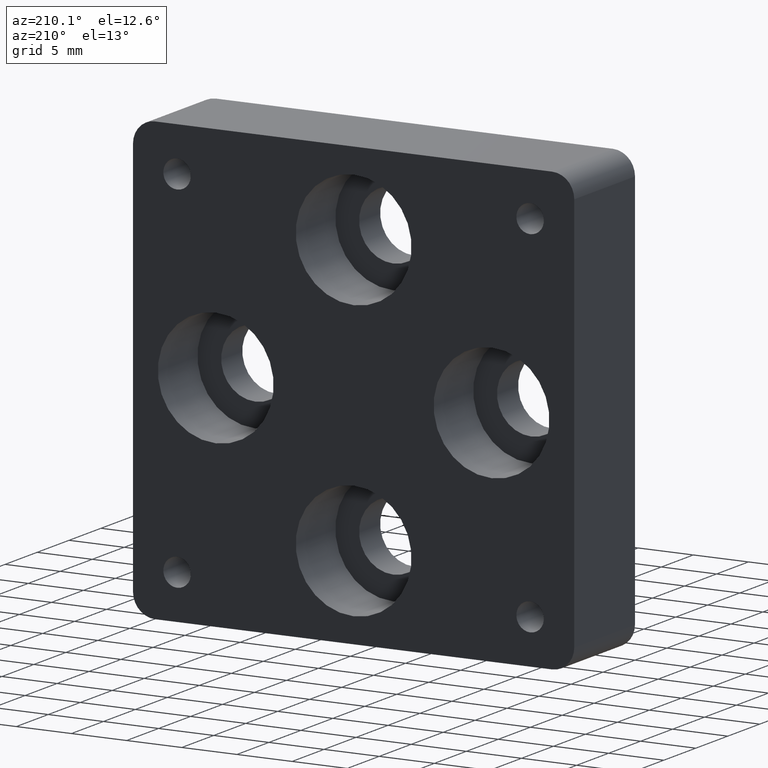
[diagram: clean part render]
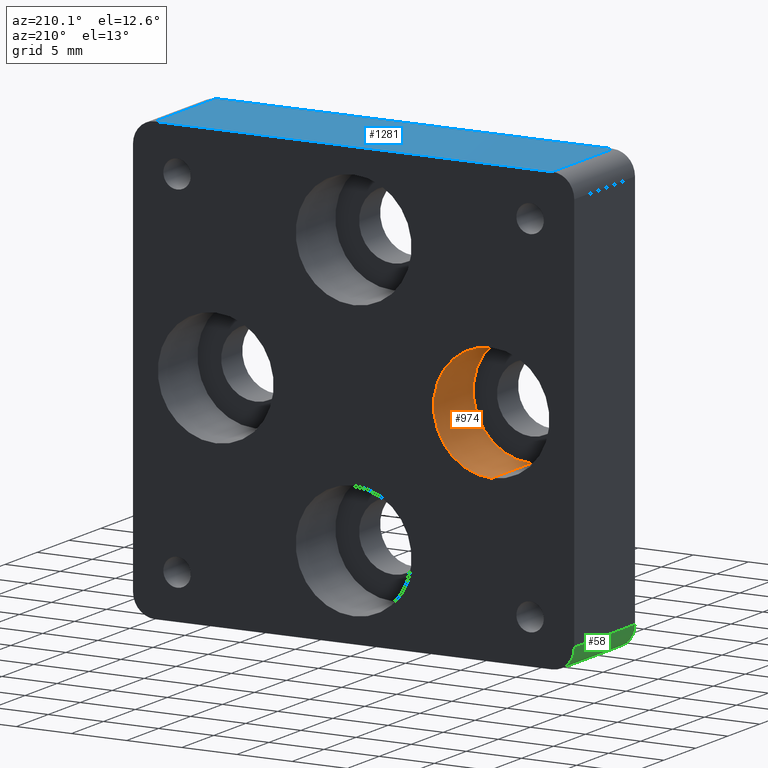
[diagram: same view with three faces highlighted in distinct colors, each labeled with its STEP entity id]
A machine part, auxiliary view with three faces highlighted in distinct colors.
Their STEP definitions:

[orange] entity #974 — the highlighted cylindrical surface (partial cylindrical patch) has radius 5.25 mm, axis along (0, 1, 0).
#3 = CARTESIAN_POINT ( 'NONE',  ( -12.50000000000000000, 9.500000000000000000, -5.250000000000000000 ) ) ;
#118 = AXIS2_PLACEMENT_3D ( 'NONE', #1045, #870, #154 ) ;
#154 = DIRECTION ( 'NONE',  ( 0.000000000000000000, 0.000000000000000000, 1.000000000000000000 ) ) ;
#204 = ORIENTED_EDGE ( 'NONE', *, *, #957, .T. ) ;
#259 = ORIENTED_EDGE ( 'NONE', *, *, #1106, .T. ) ;
#301 = EDGE_CURVE ( 'NONE', #924, #1097, #835, .T. ) ;
#305 = DIRECTION ( 'NONE',  ( 0.000000000000000000, 1.000000000000000000, 0.000000000000000000 ) ) ;
#323 = AXIS2_PLACEMENT_3D ( 'NONE', #411, #1119, #1221 ) ;
#372 = VERTEX_POINT ( 'NONE', #952 ) ;
#411 = CARTESIAN_POINT ( 'NONE',  ( -12.50000000000000000, 9.500000000000000000, 0.000000000000000000 ) ) ;
#458 = LINE ( 'NONE', #1042, #1187 ) ;
#552 = DIRECTION ( 'NONE',  ( 0.000000000000000000, 1.000000000000000000, 0.000000000000000000 ) ) ;
#559 = DIRECTION ( 'NONE',  ( 0.000000000000000000, 1.000000000000000000, 0.000000000000000000 ) ) ;
#598 = CARTESIAN_POINT ( 'NONE',  ( -12.50000000000000000, 3.299999999999999822, -5.250000000000000000 ) ) ;
#623 = EDGE_CURVE ( 'NONE', #1097, #694, #1086, .T. ) ;
#668 = DIRECTION ( 'NONE',  ( 0.000000000000000000, 0.000000000000000000, 1.000000000000000000 ) ) ;
#694 = VERTEX_POINT ( 'NONE', #3 ) ;
#739 = CARTESIAN_POINT ( 'NONE',  ( -12.50000000000000000, 3.299999999999999822, 5.250000000000000000 ) ) ;
#761 = CIRCLE ( 'NONE', #323, 5.250000000000000000 ) ;
#835 = CIRCLE ( 'NONE', #118, 5.250000000000000000 ) ;
#836 = ORIENTED_EDGE ( 'NONE', *, *, #623, .F. ) ;
#870 = DIRECTION ( 'NONE',  ( 0.000000000000000000, 1.000000000000000000, 0.000000000000000000 ) ) ;
#904 = AXIS2_PLACEMENT_3D ( 'NONE', #945, #552, #668 ) ;
#924 = VERTEX_POINT ( 'NONE', #739 ) ;
#945 = CARTESIAN_POINT ( 'NONE',  ( -12.50000000000000000, 3.299999999999999822, 0.000000000000000000 ) ) ;
#952 = CARTESIAN_POINT ( 'NONE',  ( -12.50000000000000000, 9.500000000000000000, 5.250000000000000000 ) ) ;
#957 = EDGE_CURVE ( 'NONE', #924, #372, #458, .T. ) ;
#974 = ADVANCED_FACE ( 'NONE', ( #1247 ), #1255, .F. ) ;
#991 = EDGE_LOOP ( 'NONE', ( #836, #1201, #204, #259 ) ) ;
#1018 = VECTOR ( 'NONE', #305, 1000.000000000000000 ) ;
#1022 = CARTESIAN_POINT ( 'NONE',  ( -12.50000000000000000, 3.299999999999999822, -5.250000000000000000 ) ) ;
#1042 = CARTESIAN_POINT ( 'NONE',  ( -12.50000000000000000, 3.299999999999999822, 5.250000000000000000 ) ) ;
#1045 = CARTESIAN_POINT ( 'NONE',  ( -12.50000000000000000, 3.299999999999999822, 0.000000000000000000 ) ) ;
#1086 = LINE ( 'NONE', #598, #1018 ) ;
#1097 = VERTEX_POINT ( 'NONE', #1022 ) ;
#1106 = EDGE_CURVE ( 'NONE', #372, #694, #761, .T. ) ;
#1119 = DIRECTION ( 'NONE',  ( 0.000000000000000000, 1.000000000000000000, 0.000000000000000000 ) ) ;
#1187 = VECTOR ( 'NONE', #559, 1000.000000000000000 ) ;
#1201 = ORIENTED_EDGE ( 'NONE', *, *, #301, .F. ) ;
#1221 = DIRECTION ( 'NONE',  ( 0.000000000000000000, 0.000000000000000000, 1.000000000000000000 ) ) ;
#1247 = FACE_OUTER_BOUND ( 'NONE', #991, .T. ) ;
#1255 = CYLINDRICAL_SURFACE ( 'NONE', #904, 5.250000000000000000 ) ;

[blue] entity #1281 — the highlighted planar face has unit normal (-0, 0, -1).
#1 = ORIENTED_EDGE ( 'NONE', *, *, #562, .T. ) ;
#82 = LINE ( 'NONE', #681, #488 ) ;
#85 = VERTEX_POINT ( 'NONE', #344 ) ;
#185 = VERTEX_POINT ( 'NONE', #533 ) ;
#190 = CARTESIAN_POINT ( 'NONE',  ( -20.00000000000000000, 9.500000000000000000, 20.00000000000000000 ) ) ;
#219 = VERTEX_POINT ( 'NONE', #268 ) ;
#232 = DIRECTION ( 'NONE',  ( 1.000000000000000000, 0.000000000000000000, -8.673617379884039170E-17 ) ) ;
#233 = CARTESIAN_POINT ( 'NONE',  ( -20.00000000000000000, 9.500000000000000000, 20.00000000000000000 ) ) ;
#238 = LINE ( 'NONE', #247, #563 ) ;
#247 = CARTESIAN_POINT ( 'NONE',  ( 18.00000000000000000, 9.500000000000000000, 20.00000000000000000 ) ) ;
#268 = CARTESIAN_POINT ( 'NONE',  ( -18.00000000000000000, 0.000000000000000000, 20.00000000000000000 ) ) ;
#277 = CARTESIAN_POINT ( 'NONE',  ( -18.00000000000000000, 9.500000000000000000, 20.00000000000000000 ) ) ;
#280 = LINE ( 'NONE', #190, #512 ) ;
#310 = VERTEX_POINT ( 'NONE', #277 ) ;
#344 = CARTESIAN_POINT ( 'NONE',  ( 18.00000000000000000, 0.000000000000000000, 20.00000000000000000 ) ) ;
#431 = ORIENTED_EDGE ( 'NONE', *, *, #561, .F. ) ;
#435 = DIRECTION ( 'NONE',  ( -1.000000000000000000, 0.000000000000000000, 8.673617379884039170E-17 ) ) ;
#488 = VECTOR ( 'NONE', #772, 1000.000000000000000 ) ;
#512 = VECTOR ( 'NONE', #588, 1000.000000000000000 ) ;
#519 = LINE ( 'NONE', #1125, #1070 ) ;
#533 = CARTESIAN_POINT ( 'NONE',  ( 18.00000000000000000, 9.500000000000000000, 20.00000000000000000 ) ) ;
#534 = DIRECTION ( 'NONE',  ( 0.000000000000000000, 1.000000000000000000, 0.000000000000000000 ) ) ;
#548 = DIRECTION ( 'NONE',  ( -8.673617379884039170E-17, 0.000000000000000000, -1.000000000000000000 ) ) ;
#561 = EDGE_CURVE ( 'NONE', #310, #185, #280, .T. ) ;
#562 = EDGE_CURVE ( 'NONE', #310, #219, #82, .T. ) ;
#563 = VECTOR ( 'NONE', #534, 1000.000000000000000 ) ;
#588 = DIRECTION ( 'NONE',  ( 1.000000000000000000, 0.000000000000000000, -8.673617379884039170E-17 ) ) ;
#591 = EDGE_LOOP ( 'NONE', ( #613, #858, #431, #1 ) ) ;
#613 = ORIENTED_EDGE ( 'NONE', *, *, #832, .T. ) ;
#681 = CARTESIAN_POINT ( 'NONE',  ( -18.00000000000000000, 9.500000000000000000, 20.00000000000000000 ) ) ;
#772 = DIRECTION ( 'NONE',  ( 0.000000000000000000, -1.000000000000000000, 0.000000000000000000 ) ) ;
#828 = PLANE ( 'NONE',  #1175 ) ;
#832 = EDGE_CURVE ( 'NONE', #219, #85, #519, .T. ) ;
#858 = ORIENTED_EDGE ( 'NONE', *, *, #934, .T. ) ;
#934 = EDGE_CURVE ( 'NONE', #85, #185, #238, .T. ) ;
#1070 = VECTOR ( 'NONE', #232, 1000.000000000000000 ) ;
#1125 = CARTESIAN_POINT ( 'NONE',  ( -20.00000000000000000, 0.000000000000000000, 20.00000000000000000 ) ) ;
#1175 = AXIS2_PLACEMENT_3D ( 'NONE', #233, #548, #435 ) ;
#1252 = FACE_OUTER_BOUND ( 'NONE', #591, .T. ) ;
#1281 = ADVANCED_FACE ( 'NONE', ( #1252 ), #828, .F. ) ;

[green] entity #58 — the highlighted cylindrical surface (edge-blend (fillet) strip) has radius 2 mm, axis along (0, -1, 0).
#11 = EDGE_CURVE ( 'NONE', #509, #158, #674, .T. ) ;
#58 = ADVANCED_FACE ( 'NONE', ( #1137 ), #420, .T. ) ;
#93 = VECTOR ( 'NONE', #373, 1000.000000000000000 ) ;
#96 = CIRCLE ( 'NONE', #527, 1.999999999999998224 ) ;
#158 = VERTEX_POINT ( 'NONE', #1025 ) ;
#206 = EDGE_LOOP ( 'NONE', ( #877, #385, #1080, #817 ) ) ;
#288 = CARTESIAN_POINT ( 'NONE',  ( -20.00000000000000000, 9.500000000000000000, -18.00000000000000000 ) ) ;
#296 = VERTEX_POINT ( 'NONE', #664 ) ;
#325 = DIRECTION ( 'NONE',  ( 0.000000000000000000, 0.000000000000000000, -1.000000000000000000 ) ) ;
#371 = DIRECTION ( 'NONE',  ( 0.000000000000000000, -1.000000000000000000, 0.000000000000000000 ) ) ;
#373 = DIRECTION ( 'NONE',  ( 0.000000000000000000, 1.000000000000000000, 0.000000000000000000 ) ) ;
#385 = ORIENTED_EDGE ( 'NONE', *, *, #11, .F. ) ;
#388 = LINE ( 'NONE', #288, #682 ) ;
#399 = CIRCLE ( 'NONE', #573, 1.999999999999998224 ) ;
#420 = CYLINDRICAL_SURFACE ( 'NONE', #629, 1.999999999999998224 ) ;
#509 = VERTEX_POINT ( 'NONE', #1274 ) ;
#524 = CARTESIAN_POINT ( 'NONE',  ( -18.00000000000000000, 9.500000000000000000, -18.00000000000000000 ) ) ;
#527 = AXIS2_PLACEMENT_3D ( 'NONE', #1240, #852, #1273 ) ;
#550 = EDGE_CURVE ( 'NONE', #1205, #296, #388, .T. ) ;
#573 = AXIS2_PLACEMENT_3D ( 'NONE', #1054, #841, #1041 ) ;
#576 = CARTESIAN_POINT ( 'NONE',  ( -18.00000000000000000, 9.500000000000000000, -20.00000000000000000 ) ) ;
#629 = AXIS2_PLACEMENT_3D ( 'NONE', #524, #930, #325 ) ;
#664 = CARTESIAN_POINT ( 'NONE',  ( -20.00000000000000000, 0.000000000000000000, -18.00000000000000000 ) ) ;
#674 = LINE ( 'NONE', #576, #93 ) ;
#682 = VECTOR ( 'NONE', #371, 1000.000000000000000 ) ;
#817 = ORIENTED_EDGE ( 'NONE', *, *, #550, .F. ) ;
#841 = DIRECTION ( 'NONE',  ( 0.000000000000000000, -1.000000000000000000, 0.000000000000000000 ) ) ;
#852 = DIRECTION ( 'NONE',  ( 0.000000000000000000, 1.000000000000000000, 0.000000000000000000 ) ) ;
#877 = ORIENTED_EDGE ( 'NONE', *, *, #996, .F. ) ;
#916 = CARTESIAN_POINT ( 'NONE',  ( -20.00000000000000000, 9.500000000000000000, -18.00000000000000000 ) ) ;
#930 = DIRECTION ( 'NONE',  ( 0.000000000000000000, -1.000000000000000000, 0.000000000000000000 ) ) ;
#996 = EDGE_CURVE ( 'NONE', #158, #1205, #96, .T. ) ;
#1025 = CARTESIAN_POINT ( 'NONE',  ( -18.00000000000000000, 9.500000000000000000, -20.00000000000000000 ) ) ;
#1041 = DIRECTION ( 'NONE',  ( 0.000000000000000000, 0.000000000000000000, -1.000000000000000000 ) ) ;
#1054 = CARTESIAN_POINT ( 'NONE',  ( -18.00000000000000000, 0.000000000000000000, -18.00000000000000000 ) ) ;
#1080 = ORIENTED_EDGE ( 'NONE', *, *, #1224, .F. ) ;
#1137 = FACE_OUTER_BOUND ( 'NONE', #206, .T. ) ;
#1205 = VERTEX_POINT ( 'NONE', #916 ) ;
#1224 = EDGE_CURVE ( 'NONE', #296, #509, #399, .T. ) ;
#1240 = CARTESIAN_POINT ( 'NONE',  ( -18.00000000000000000, 9.500000000000000000, -18.00000000000000000 ) ) ;
#1273 = DIRECTION ( 'NONE',  ( 0.000000000000000000, 0.000000000000000000, -1.000000000000000000 ) ) ;
#1274 = CARTESIAN_POINT ( 'NONE',  ( -18.00000000000000000, 0.000000000000000000, -20.00000000000000000 ) ) ;